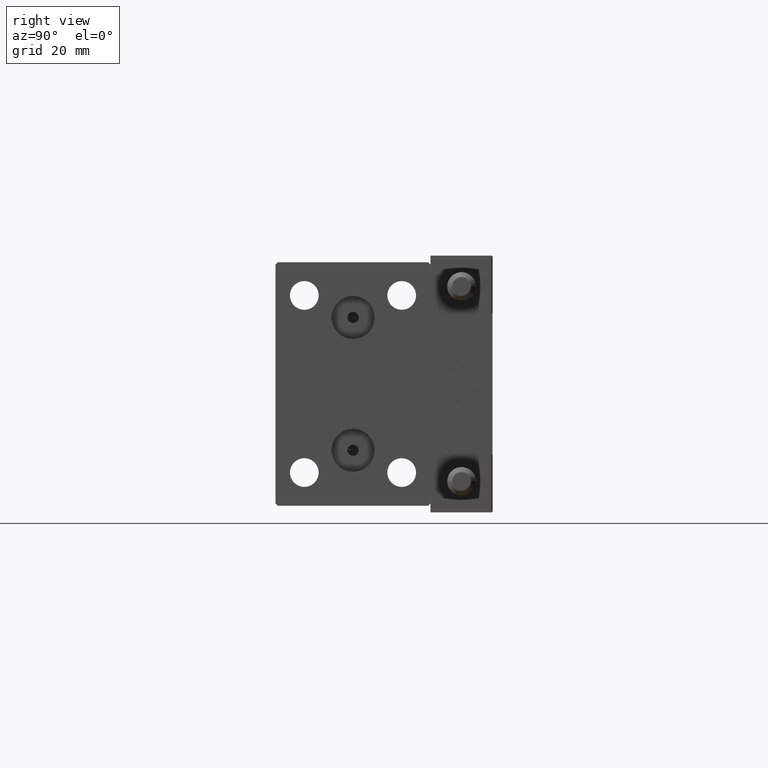
[diagram: clean part render]
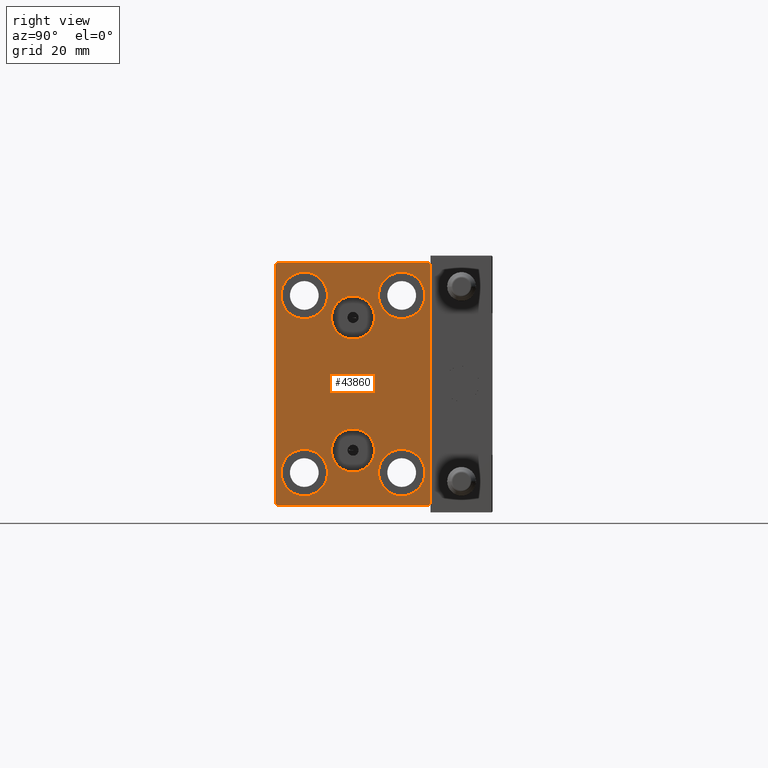
[diagram: same view with one face highlighted and labeled with its STEP entity id]
A machine part, right view. The second image highlights one B-rep face of the part: STEP entity #43860.
In plain terms, the highlighted planar face has unit normal (1, 0, 0).
Its self-contained STEP definition (entity closure, byte-faithful):
#19 = EDGE_CURVE ( 'NONE', #20390, #1086, #29253, .T. ) ;
#60 = CARTESIAN_POINT ( 'NONE',  ( 56.00000000000000000, -11.00000000000000355, 20.00000000000000000 ) ) ;
#453 = EDGE_CURVE ( 'NONE', #15151, #38642, #13757, .T. ) ;
#552 = DIRECTION ( 'NONE',  ( 1.000000000000000000, 0.000000000000000000, -0.000000000000000000 ) ) ;
#564 = EDGE_CURVE ( 'NONE', #46296, #44502, #9703, .T. ) ;
#790 = EDGE_CURVE ( 'NONE', #15688, #11713, #21411, .T. ) ;
#935 = DIRECTION ( 'NONE',  ( -1.000000000000000000, -0.000000000000000000, -0.000000000000000000 ) ) ;
#1027 = VERTEX_POINT ( 'NONE', #8821 ) ;
#1085 = EDGE_CURVE ( 'NONE', #36549, #41114, #24378, .T. ) ;
#1086 = VERTEX_POINT ( 'NONE', #48162 ) ;
#1852 = DIRECTION ( 'NONE',  ( 0.000000000000000000, 0.000000000000000000, 1.000000000000000000 ) ) ;
#2280 = VECTOR ( 'NONE', #11476, 1000.000000000000000 ) ;
#2334 = AXIS2_PLACEMENT_3D ( 'NONE', #32582, #5000, #28993 ) ;
#2543 = EDGE_CURVE ( 'NONE', #33718, #15688, #49530, .T. ) ;
#3147 = DIRECTION ( 'NONE',  ( 0.000000000000000000, 0.000000000000000000, 1.000000000000000000 ) ) ;
#3325 = EDGE_CURVE ( 'NONE', #44502, #46296, #13032, .T. ) ;
#3954 = EDGE_CURVE ( 'NONE', #1086, #20390, #14700, .T. ) ;
#4319 = VECTOR ( 'NONE', #25404, 1000.000000000000114 ) ;
#4440 = EDGE_LOOP ( 'NONE', ( #38109, #18963 ) ) ;
#4491 = AXIS2_PLACEMENT_3D ( 'NONE', #20361, #935, #39746 ) ;
#4690 = VERTEX_POINT ( 'NONE', #30883 ) ;
#4790 = AXIS2_PLACEMENT_3D ( 'NONE', #7365, #11197, #14788 ) ;
#5000 = DIRECTION ( 'NONE',  ( -1.000000000000000000, -0.000000000000000000, -0.000000000000000000 ) ) ;
#5200 = DIRECTION ( 'NONE',  ( 0.000000000000000000, -0.7071067811865474617, -0.7071067811865474617 ) ) ;
#5458 = EDGE_CURVE ( 'NONE', #4690, #15620, #37573, .T. ) ;
#5685 = CARTESIAN_POINT ( 'NONE',  ( 56.00000000000000000, 11.00000000000000355, -20.00000000000000000 ) ) ;
#6068 = ORIENTED_EDGE ( 'NONE', *, *, #3954, .T. ) ;
#6137 = DIRECTION ( 'NONE',  ( 0.000000000000000000, 0.000000000000000000, -1.000000000000000000 ) ) ;
#6593 = CARTESIAN_POINT ( 'NONE',  ( 56.00000000000000000, -11.00000000000000355, -20.00000000000000000 ) ) ;
#6679 = ORIENTED_EDGE ( 'NONE', *, *, #790, .T. ) ;
#7365 = CARTESIAN_POINT ( 'NONE',  ( 56.00000000000000000, 11.00000000000000355, -20.00000000000000000 ) ) ;
#7638 = CARTESIAN_POINT ( 'NONE',  ( 56.00000000000000000, -17.50000000000000000, -27.50000000000000355 ) ) ;
#8160 = FACE_BOUND ( 'NONE', #18031, .T. ) ;
#8220 = CARTESIAN_POINT ( 'NONE',  ( 56.00000000000000000, -1.734723475976807094E-15, -15.00000000000000000 ) ) ;
#8425 = CIRCLE ( 'NONE', #34533, 5.250000000000000888 ) ;
#8596 = EDGE_LOOP ( 'NONE', ( #16350, #14634 ) ) ;
#8821 = CARTESIAN_POINT ( 'NONE',  ( 56.00000000000000000, 17.00000000000000711, -27.50000000000000355 ) ) ;
#8959 = DIRECTION ( 'NONE',  ( 1.000000000000000000, 0.000000000000000000, -0.000000000000000000 ) ) ;
#9447 = DIRECTION ( 'NONE',  ( 0.000000000000000000, 0.000000000000000000, -1.000000000000000000 ) ) ;
#9703 = CIRCLE ( 'NONE', #4790, 5.250000000000000888 ) ;
#9752 = EDGE_CURVE ( 'NONE', #12521, #16237, #18038, .T. ) ;
#10134 = DIRECTION ( 'NONE',  ( -0.000000000000000000, -0.7071067811865474617, 0.7071067811865474617 ) ) ;
#10306 = ORIENTED_EDGE ( 'NONE', *, *, #27586, .T. ) ;
#10365 = CARTESIAN_POINT ( 'NONE',  ( 56.00000000000000000, -16.99999999999999289, 27.49999999999999645 ) ) ;
#10399 = EDGE_CURVE ( 'NONE', #38434, #22734, #21547, .T. ) ;
#10464 = AXIS2_PLACEMENT_3D ( 'NONE', #38146, #34574, #3147 ) ;
#10483 = CARTESIAN_POINT ( 'NONE',  ( 56.00000000000000000, -17.50000000000000000, 26.99999999999998934 ) ) ;
#10888 = ORIENTED_EDGE ( 'NONE', *, *, #31614, .T. ) ;
#11197 = DIRECTION ( 'NONE',  ( -1.000000000000000000, -0.000000000000000000, -0.000000000000000000 ) ) ;
#11221 = CARTESIAN_POINT ( 'NONE',  ( 56.00000000000000000, -17.50000000000000000, 27.49999999999999645 ) ) ;
#11476 = DIRECTION ( 'NONE',  ( 0.000000000000000000, 1.000000000000000000, 0.000000000000000000 ) ) ;
#11527 = AXIS2_PLACEMENT_3D ( 'NONE', #60, #23058, #15896 ) ;
#11713 = VERTEX_POINT ( 'NONE', #25065 ) ;
#11788 = DIRECTION ( 'NONE',  ( 0.000000000000000000, -1.000000000000000000, -1.982541115402065110E-16 ) ) ;
#11991 = DIRECTION ( 'NONE',  ( 0.000000000000000000, 0.000000000000000000, -1.000000000000000000 ) ) ;
#12249 = DIRECTION ( 'NONE',  ( 1.000000000000000000, 0.000000000000000000, 0.000000000000000000 ) ) ;
#12485 = LINE ( 'NONE', #7638, #2280 ) ;
#12521 = VERTEX_POINT ( 'NONE', #42782 ) ;
#12553 = LINE ( 'NONE', #21244, #37015 ) ;
#13032 = CIRCLE ( 'NONE', #41582, 5.250000000000000888 ) ;
#13066 = AXIS2_PLACEMENT_3D ( 'NONE', #41499, #14183, #41013 ) ;
#13426 = VECTOR ( 'NONE', #6137, 1000.000000000000000 ) ;
#13467 = EDGE_CURVE ( 'NONE', #41854, #21186, #41223, .T. ) ;
#13757 = CIRCLE ( 'NONE', #37433, 4.859999999999999432 ) ;
#14183 = DIRECTION ( 'NONE',  ( -1.000000000000000000, -0.000000000000000000, -0.000000000000000000 ) ) ;
#14580 = EDGE_LOOP ( 'NONE', ( #23598, #37034 ) ) ;
#14634 = ORIENTED_EDGE ( 'NONE', *, *, #9752, .F. ) ;
#14700 = CIRCLE ( 'NONE', #13066, 5.250000000000000888 ) ;
#14788 = DIRECTION ( 'NONE',  ( 0.000000000000000000, 0.000000000000000000, 1.000000000000000000 ) ) ;
#14900 = EDGE_LOOP ( 'NONE', ( #25299, #26729 ) ) ;
#15151 = VERTEX_POINT ( 'NONE', #17610 ) ;
#15261 = EDGE_CURVE ( 'NONE', #41114, #36549, #8425, .T. ) ;
#15466 = VECTOR ( 'NONE', #19137, 1000.000000000000000 ) ;
#15620 = VERTEX_POINT ( 'NONE', #30214 ) ;
#15688 = VERTEX_POINT ( 'NONE', #39638 ) ;
#15827 = DIRECTION ( 'NONE',  ( 1.000000000000000000, 0.000000000000000000, 0.000000000000000000 ) ) ;
#15896 = DIRECTION ( 'NONE',  ( 0.000000000000000000, 0.000000000000000000, 1.000000000000000000 ) ) ;
#16237 = VERTEX_POINT ( 'NONE', #32196 ) ;
#16344 = EDGE_LOOP ( 'NONE', ( #37551, #6068 ) ) ;
#16350 = ORIENTED_EDGE ( 'NONE', *, *, #43459, .F. ) ;
#16445 = CARTESIAN_POINT ( 'NONE',  ( 56.00000000000000000, -22.24999999999999645, 22.24999999999999645 ) ) ;
#16720 = ORIENTED_EDGE ( 'NONE', *, *, #15261, .T. ) ;
#17610 = CARTESIAN_POINT ( 'NONE',  ( 56.00000000000000000, -1.836970198721029589E-15, 10.14000000000000057 ) ) ;
#17729 = ORIENTED_EDGE ( 'NONE', *, *, #43693, .T. ) ;
#17742 = CARTESIAN_POINT ( 'NONE',  ( 56.00000000000000000, -1.241791854335416311E-15, 19.85999999999999943 ) ) ;
#17902 = ORIENTED_EDGE ( 'NONE', *, *, #2543, .T. ) ;
#18031 = EDGE_LOOP ( 'NONE', ( #16720, #35467 ) ) ;
#18038 = CIRCLE ( 'NONE', #46562, 4.859999999999999432 ) ;
#18070 = VECTOR ( 'NONE', #5200, 1000.000000000000114 ) ;
#18164 = EDGE_CURVE ( 'NONE', #22734, #41854, #30141, .T. ) ;
#18603 = DIRECTION ( 'NONE',  ( 0.000000000000000000, 0.000000000000000000, 1.000000000000000000 ) ) ;
#18919 = EDGE_CURVE ( 'NONE', #15620, #4690, #49361, .T. ) ;
#18963 = ORIENTED_EDGE ( 'NONE', *, *, #564, .T. ) ;
#19137 = DIRECTION ( 'NONE',  ( 0.000000000000000000, -1.261617073437677752E-16, 1.000000000000000000 ) ) ;
#19164 = PLANE ( 'NONE',  #48415 ) ;
#19668 = FACE_BOUND ( 'NONE', #4440, .T. ) ;
#20361 = CARTESIAN_POINT ( 'NONE',  ( 56.00000000000000000, -11.00000000000000355, 20.00000000000000000 ) ) ;
#20390 = VERTEX_POINT ( 'NONE', #26707 ) ;
#20477 = DIRECTION ( 'NONE',  ( 0.000000000000000000, 0.000000000000000000, 1.000000000000000000 ) ) ;
#20680 = CIRCLE ( 'NONE', #25584, 4.859999999999999432 ) ;
#21186 = VERTEX_POINT ( 'NONE', #42551 ) ;
#21244 = CARTESIAN_POINT ( 'NONE',  ( 56.00000000000000000, 22.25000000000000711, -22.25000000000000711 ) ) ;
#21288 = DIRECTION ( 'NONE',  ( -1.000000000000000000, -0.000000000000000000, -0.000000000000000000 ) ) ;
#21411 = LINE ( 'NONE', #44132, #48037 ) ;
#21547 = LINE ( 'NONE', #16445, #18070 ) ;
#22658 = ORIENTED_EDGE ( 'NONE', *, *, #18164, .T. ) ;
#22734 = VERTEX_POINT ( 'NONE', #10483 ) ;
#23058 = DIRECTION ( 'NONE',  ( -1.000000000000000000, -0.000000000000000000, -0.000000000000000000 ) ) ;
#23598 = ORIENTED_EDGE ( 'NONE', *, *, #18919, .T. ) ;
#24378 = CIRCLE ( 'NONE', #2334, 5.250000000000000888 ) ;
#24932 = CARTESIAN_POINT ( 'NONE',  ( 56.00000000000000000, -17.50000000000000000, -26.99999999999999645 ) ) ;
#25065 = CARTESIAN_POINT ( 'NONE',  ( 56.00000000000000000, 16.99999999999999289, 27.50000000000000355 ) ) ;
#25299 = ORIENTED_EDGE ( 'NONE', *, *, #453, .F. ) ;
#25404 = DIRECTION ( 'NONE',  ( -0.000000000000000000, 0.7071067811865474617, -0.7071067811865474617 ) ) ;
#25584 = AXIS2_PLACEMENT_3D ( 'NONE', #43147, #15827, #47243 ) ;
#25744 = CARTESIAN_POINT ( 'NONE',  ( 56.00000000000000000, -1.734723475976807094E-15, -15.00000000000000000 ) ) ;
#26517 = DIRECTION ( 'NONE',  ( -1.000000000000000000, -0.000000000000000000, -0.000000000000000000 ) ) ;
#26707 = CARTESIAN_POINT ( 'NONE',  ( 56.00000000000000000, 11.00000000000000355, 14.75000000000000000 ) ) ;
#26729 = ORIENTED_EDGE ( 'NONE', *, *, #43859, .F. ) ;
#26792 = CARTESIAN_POINT ( 'NONE',  ( 56.00000000000000000, 17.50000000000000711, -27.00000000000000355 ) ) ;
#27327 = FACE_BOUND ( 'NONE', #14900, .T. ) ;
#27586 = EDGE_CURVE ( 'NONE', #21186, #1027, #12485, .T. ) ;
#28859 = CARTESIAN_POINT ( 'NONE',  ( 56.00000000000000000, -1.836970198721029589E-15, 15.00000000000000000 ) ) ;
#28993 = DIRECTION ( 'NONE',  ( 0.000000000000000000, 0.000000000000000000, 1.000000000000000000 ) ) ;
#29253 = CIRCLE ( 'NONE', #10464, 5.250000000000000888 ) ;
#29758 = LINE ( 'NONE', #41500, #44845 ) ;
#30141 = LINE ( 'NONE', #11221, #13426 ) ;
#30214 = CARTESIAN_POINT ( 'NONE',  ( 56.00000000000000000, -11.00000000000000355, 14.75000000000000000 ) ) ;
#30424 = CARTESIAN_POINT ( 'NONE',  ( 56.00000000000000000, 11.00000000000000355, -14.75000000000000000 ) ) ;
#30644 = CARTESIAN_POINT ( 'NONE',  ( 56.00000000000000000, 0.000000000000000000, 0.000000000000000000 ) ) ;
#30883 = CARTESIAN_POINT ( 'NONE',  ( 56.00000000000000000, -11.00000000000000355, 25.25000000000000000 ) ) ;
#30890 = FACE_BOUND ( 'NONE', #8596, .T. ) ;
#31406 = FACE_BOUND ( 'NONE', #16344, .T. ) ;
#31614 = EDGE_CURVE ( 'NONE', #11713, #38434, #29758, .T. ) ;
#32196 = CARTESIAN_POINT ( 'NONE',  ( 56.00000000000000000, -1.734723475976807094E-15, -19.85999999999999943 ) ) ;
#32471 = DIRECTION ( 'NONE',  ( -0.000000000000000000, 0.7071067811865474617, 0.7071067811865474617 ) ) ;
#32582 = CARTESIAN_POINT ( 'NONE',  ( 56.00000000000000000, -11.00000000000000355, -20.00000000000000000 ) ) ;
#33718 = VERTEX_POINT ( 'NONE', #26792 ) ;
#33833 = EDGE_LOOP ( 'NONE', ( #10888, #38396, #22658, #46633, #10306, #17729, #17902, #6679 ) ) ;
#34533 = AXIS2_PLACEMENT_3D ( 'NONE', #6593, #26517, #18603 ) ;
#34574 = DIRECTION ( 'NONE',  ( -1.000000000000000000, -0.000000000000000000, -0.000000000000000000 ) ) ;
#35467 = ORIENTED_EDGE ( 'NONE', *, *, #1085, .T. ) ;
#35504 = FACE_OUTER_BOUND ( 'NONE', #33833, .T. ) ;
#36154 = CARTESIAN_POINT ( 'NONE',  ( 56.00000000000000000, -22.25000000000000355, -22.25000000000000355 ) ) ;
#36549 = VERTEX_POINT ( 'NONE', #37631 ) ;
#37015 = VECTOR ( 'NONE', #32471, 1000.000000000000114 ) ;
#37034 = ORIENTED_EDGE ( 'NONE', *, *, #5458, .T. ) ;
#37433 = AXIS2_PLACEMENT_3D ( 'NONE', #28859, #41358, #9447 ) ;
#37551 = ORIENTED_EDGE ( 'NONE', *, *, #19, .T. ) ;
#37573 = CIRCLE ( 'NONE', #11527, 5.250000000000000888 ) ;
#37631 = CARTESIAN_POINT ( 'NONE',  ( 56.00000000000000000, -11.00000000000000355, -14.75000000000000000 ) ) ;
#38109 = ORIENTED_EDGE ( 'NONE', *, *, #3325, .T. ) ;
#38146 = CARTESIAN_POINT ( 'NONE',  ( 56.00000000000000000, 11.00000000000000355, 20.00000000000000000 ) ) ;
#38396 = ORIENTED_EDGE ( 'NONE', *, *, #10399, .T. ) ;
#38434 = VERTEX_POINT ( 'NONE', #10365 ) ;
#38642 = VERTEX_POINT ( 'NONE', #17742 ) ;
#39034 = CARTESIAN_POINT ( 'NONE',  ( 56.00000000000000000, 17.50000000000000711, -27.50000000000000355 ) ) ;
#39638 = CARTESIAN_POINT ( 'NONE',  ( 56.00000000000000000, 17.50000000000000000, 26.99999999999999645 ) ) ;
#39746 = DIRECTION ( 'NONE',  ( 0.000000000000000000, 0.000000000000000000, 1.000000000000000000 ) ) ;
#40283 = CARTESIAN_POINT ( 'NONE',  ( 56.00000000000000000, 11.00000000000000355, -25.25000000000000000 ) ) ;
#41013 = DIRECTION ( 'NONE',  ( 0.000000000000000000, 0.000000000000000000, 1.000000000000000000 ) ) ;
#41114 = VERTEX_POINT ( 'NONE', #42553 ) ;
#41223 = LINE ( 'NONE', #36154, #4319 ) ;
#41358 = DIRECTION ( 'NONE',  ( 1.000000000000000000, 0.000000000000000000, 0.000000000000000000 ) ) ;
#41499 = CARTESIAN_POINT ( 'NONE',  ( 56.00000000000000000, 11.00000000000000355, 20.00000000000000000 ) ) ;
#41500 = CARTESIAN_POINT ( 'NONE',  ( 56.00000000000000000, 17.50000000000000000, 27.50000000000000355 ) ) ;
#41582 = AXIS2_PLACEMENT_3D ( 'NONE', #5685, #21288, #1852 ) ;
#41854 = VERTEX_POINT ( 'NONE', #24932 ) ;
#42449 = DIRECTION ( 'NONE',  ( 0.000000000000000000, 0.000000000000000000, 1.000000000000000000 ) ) ;
#42551 = CARTESIAN_POINT ( 'NONE',  ( 56.00000000000000000, -16.99999999999999289, -27.50000000000000355 ) ) ;
#42553 = CARTESIAN_POINT ( 'NONE',  ( 56.00000000000000000, -11.00000000000000355, -25.25000000000000000 ) ) ;
#42782 = CARTESIAN_POINT ( 'NONE',  ( 56.00000000000000000, -1.139545131591193817E-15, -10.14000000000000057 ) ) ;
#43147 = CARTESIAN_POINT ( 'NONE',  ( 56.00000000000000000, -1.836970198721029589E-15, 15.00000000000000000 ) ) ;
#43459 = EDGE_CURVE ( 'NONE', #16237, #12521, #43513, .T. ) ;
#43513 = CIRCLE ( 'NONE', #45971, 4.859999999999999432 ) ;
#43693 = EDGE_CURVE ( 'NONE', #1027, #33718, #12553, .T. ) ;
#43859 = EDGE_CURVE ( 'NONE', #38642, #15151, #20680, .T. ) ;
#43860 = ADVANCED_FACE ( 'NONE', ( #27327, #30890, #19668, #46989, #31406, #8160, #35504 ), #19164, .T. ) ;
#44132 = CARTESIAN_POINT ( 'NONE',  ( 56.00000000000000000, 22.25000000000000355, 22.25000000000000355 ) ) ;
#44502 = VERTEX_POINT ( 'NONE', #40283 ) ;
#44845 = VECTOR ( 'NONE', #11788, 1000.000000000000000 ) ;
#45971 = AXIS2_PLACEMENT_3D ( 'NONE', #8220, #552, #42449 ) ;
#46296 = VERTEX_POINT ( 'NONE', #30424 ) ;
#46562 = AXIS2_PLACEMENT_3D ( 'NONE', #25744, #8959, #20477 ) ;
#46633 = ORIENTED_EDGE ( 'NONE', *, *, #13467, .T. ) ;
#46989 = FACE_BOUND ( 'NONE', #14580, .T. ) ;
#47243 = DIRECTION ( 'NONE',  ( 0.000000000000000000, 0.000000000000000000, -1.000000000000000000 ) ) ;
#48037 = VECTOR ( 'NONE', #10134, 1000.000000000000114 ) ;
#48162 = CARTESIAN_POINT ( 'NONE',  ( 56.00000000000000000, 11.00000000000000355, 25.25000000000000000 ) ) ;
#48415 = AXIS2_PLACEMENT_3D ( 'NONE', #30644, #12249, #11991 ) ;
#49361 = CIRCLE ( 'NONE', #4491, 5.250000000000000888 ) ;
#49530 = LINE ( 'NONE', #39034, #15466 ) ;